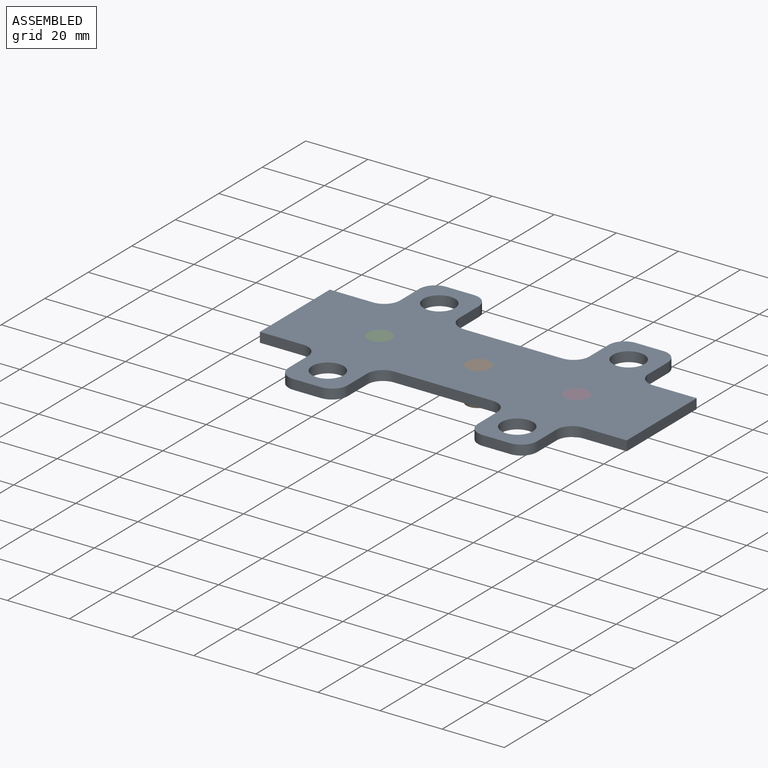
[diagram: assembled view]
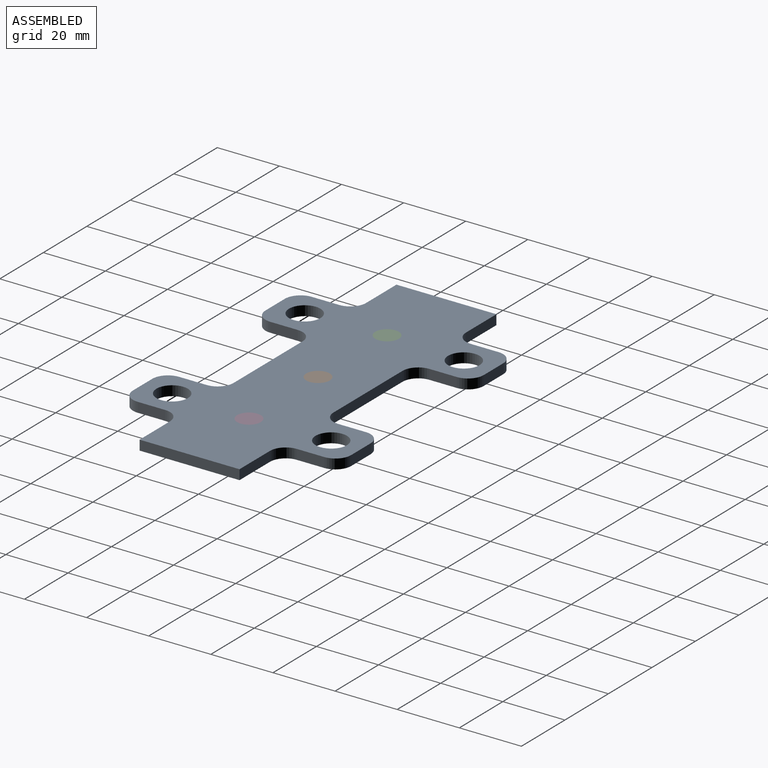
[diagram: assembled view, second angle]
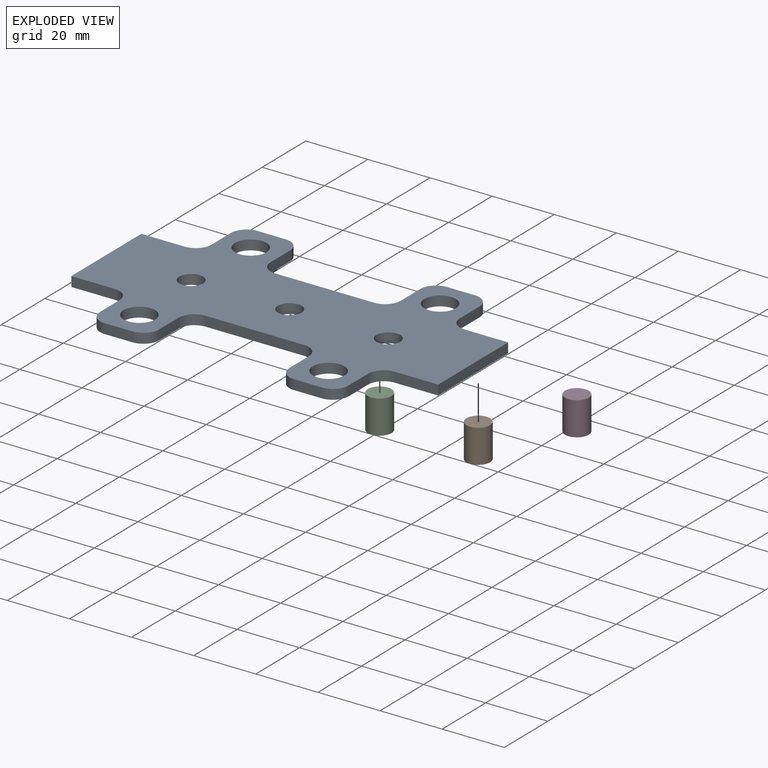
[diagram: exploded view]
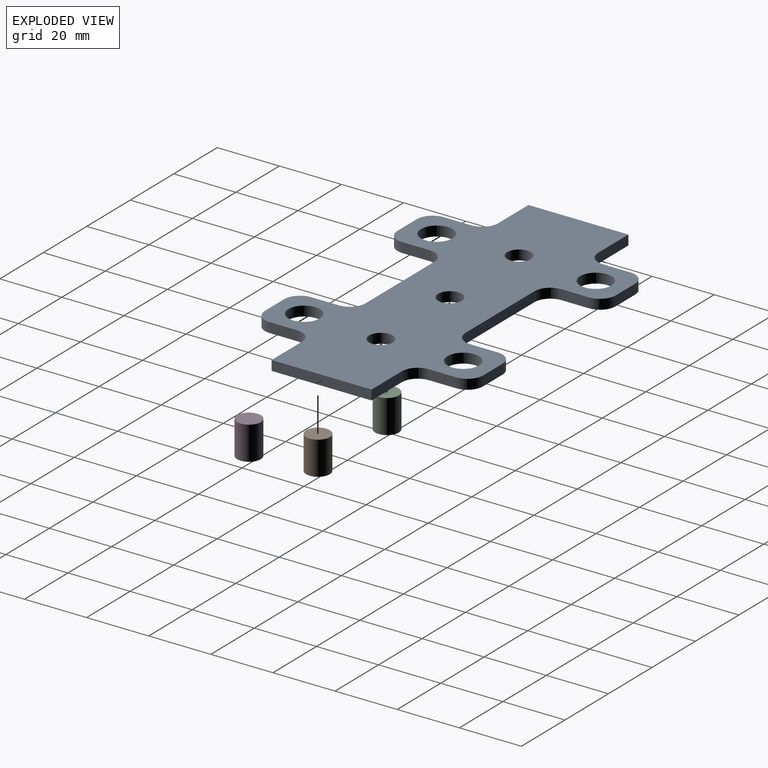
[diagram: exploded view, second angle]
ASSEMBLY  parts=4 mates=3
PART A: 45 faces, bbox 118.1x70.3x3.2 mm
  f0: plane 8.89x3.18mm, normal (0,-1,0), area 28.2mm2, adj f27,f28,f32,f37
  f1: plane 8.89x3.18mm, normal (-1,0,0), area 28.2mm2, adj f27,f28,f37,f44
  f2: plane 13.97x3.18mm, normal (0,-1,0), area 44.4mm2, adj f3,f27,f28,f44
  f3: plane 32.17x3.18mm, normal (-1,0,0), area 102.2mm2, adj f2,f4,f27,f28
  f4: plane 13.97x3.18mm, normal (0,1,0), area 44.4mm2, adj f3,f27,f28,f43
  f5: plane 8.89x3.18mm, normal (-1,0,0), area 28.2mm2, adj f27,f28,f42,f43
  f6: plane 8.89x3.18mm, normal (0,1,0), area 28.2mm2, adj f27,f28,f41,f42
  f7: plane 8.89x3.18mm, normal (1,0,0), area 28.2mm2, adj f27,f28,f40,f41
  f8: plane 31.75x3.18mm, normal (0,1,0), area 100.8mm2, adj f27,f28,f35,f40
  f9: plane 8.89x3.18mm, normal (-1,0,0), area 28.2mm2, adj f27,f28,f30,f35
  f10: plane 8.89x3.18mm, normal (0,1,0), area 28.2mm2, adj f27,f28,f30,f39
  f11: plane 8.89x3.18mm, normal (1,0,0), area 28.2mm2, adj f27,f28,f38,f39
  f12: plane 13.97x3.18mm, normal (0,1,0), area 44.4mm2, adj f13,f27,f28,f38
  f13: plane 32.17x3.18mm, normal (1,0,0), area 102.2mm2, adj f12,f14,f27,f28
  f14: plane 13.97x3.18mm, normal (0,-1,0), area 44.4mm2, adj f13,f27,f28,f29
  f15: plane 8.89x3.18mm, normal (1,0,0), area 28.2mm2, adj f27,f28,f29,f33
  f16: plane 8.89x3.18mm, normal (0,-1,0), area 28.2mm2, adj f27,f28,f31,f33
  f17: plane 8.89x3.18mm, normal (-1,0,0), area 28.2mm2, adj f27,f28,f31,f36
  f18: plane 31.75x3.18mm, normal (0,-1,0), area 100.8mm2, adj f27,f28,f34,f36
  f19: plane 8.89x3.18mm, normal (1,0,0), area 28.2mm2, adj f27,f28,f32,f34
  f20: cylinder r=3.81mm len=7.62mm, axis (0,0,1), area 76mm2, adj f27,f28
  f21: cylinder r=3.81mm len=7.62mm, axis (0,0,1), area 76mm2, adj f27,f28
  f22: cylinder r=3.81mm len=7.62mm, axis (0,0,1), area 76mm2, adj f27,f28
  f23: cylinder r=5.08mm len=10.16mm, axis (0,0,1), area 101.3mm2, adj f27,f28
  f24: cylinder r=5.08mm len=10.16mm, axis (0,0,1), area 101.3mm2, adj f27,f28
  f25: cylinder r=5.08mm len=10.16mm, axis (0,0,1), area 101.3mm2, adj f27,f28
  f26: cylinder r=5.08mm len=10.16mm, axis (0,0,1), area 101.3mm2, adj f27,f28
  f27: plane 118.11x70.27mm, normal (0,0,-1), area 4790.5mm2, adj f0,f1,f2,f3,f4,f5,f6,f7
  f28: plane 118.11x70.27mm, normal (0,0,1), area 4790.5mm2, adj f0,f1,f2,f3,f4,f5,f6,f7
  f29: cylinder r=5.08mm len=5.08mm, axis (0,0,1), area 25.3mm2, adj f14,f15,f27,f28
  f30: cylinder r=5.08mm len=5.08mm, axis (0,0,1), area 25.3mm2, adj f9,f10,f27,f28
  f31: cylinder r=5.08mm len=5.08mm, axis (0,0,1), area 25.3mm2, adj f16,f17,f27,f28
  f32: cylinder r=5.08mm len=5.08mm, axis (0,0,1), area 25.3mm2, adj f0,f19,f27,f28
  f33: cylinder r=5.08mm len=5.08mm, axis (0,0,-1), area 25.3mm2, adj f15,f16,f27,f28
  f34: cylinder r=5.08mm len=5.08mm, axis (0,0,1), area 25.3mm2, adj f18,f19,f27,f28
  f35: cylinder r=5.08mm len=5.08mm, axis (0,0,-1), area 25.3mm2, adj f8,f9,f27,f28
  f36: cylinder r=5.08mm len=5.08mm, axis (0,0,-1), area 25.3mm2, adj f17,f18,f27,f28
  f37: cylinder r=5.08mm len=5.08mm, axis (0,0,-1), area 25.3mm2, adj f0,f1,f27,f28
  f38: cylinder r=5.08mm len=5.08mm, axis (0,0,1), area 25.3mm2, adj f11,f12,f27,f28
  f39: cylinder r=5.08mm len=5.08mm, axis (0,0,-1), area 25.3mm2, adj f10,f11,f27,f28
  f40: cylinder r=5.08mm len=5.08mm, axis (0,0,1), area 25.3mm2, adj f7,f8,f27,f28
  f41: cylinder r=5.08mm len=5.08mm, axis (0,0,1), area 25.3mm2, adj f6,f7,f27,f28
  f42: cylinder r=5.08mm len=5.08mm, axis (0,0,-1), area 25.3mm2, adj f5,f6,f27,f28
  f43: cylinder r=5.08mm len=5.08mm, axis (0,0,-1), area 25.3mm2, adj f4,f5,f27,f28
  f44: cylinder r=5.08mm len=5.08mm, axis (0,0,-1), area 25.3mm2, adj f1,f2,f27,f28
PART B: 3 faces, bbox 7.6x7.6x10.8 mm
  f0: cylinder r=3.81mm len=10.8mm, axis (0,0,1), area 258.4mm2, adj f1,f2
  f1: plane 7.62x7.62mm, normal (0,0,-1), area 45.6mm2, adj f0
  f2: plane 7.62x7.62mm, normal (0,0,1), area 45.6mm2, adj f0
PART C: same geometry as B
PART D: same geometry as B
PLACE A at identity fixed
PLACE B t=(-31.75,0,0)mm
PLACE C t=(-63.5,0,0)mm
PLACE D at identity
MATE fastened C.f0 <-> A.f20  axis (0,0,1) through (81.84,0,79.38)mm
MATE fastened D.f0 <-> A.f22  axis (0,0,1) through (145.34,0,79.38)mm
MATE fastened B.f0 <-> A.f21  axis (0,0,1) through (113.59,0,79.38)mm
